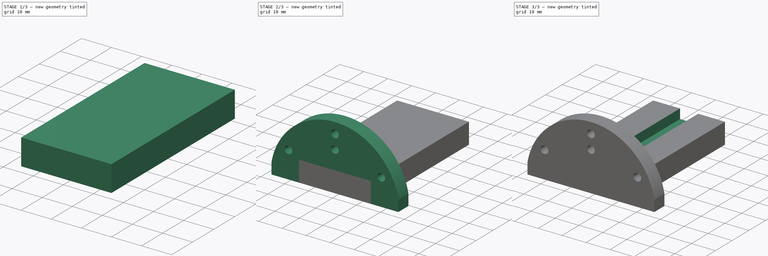
[diagram: build sequence overview — one tinted view per stage of 3, left to right]
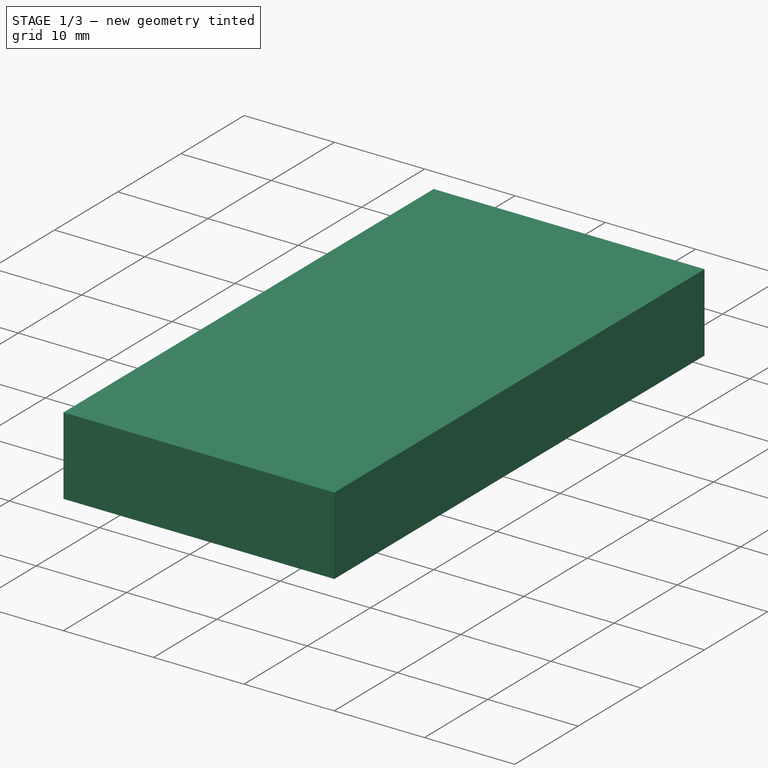
[diagram: stage 1 of 3 — iso view after this stage's code; geometry added in this stage tinted green]
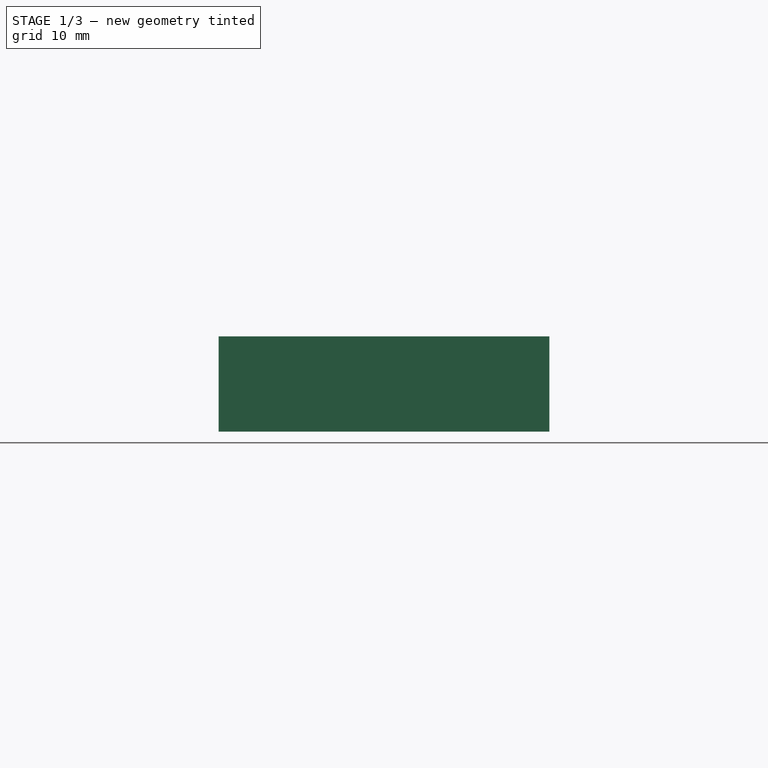
[diagram: stage 1 of 3 — front view after this stage's code; geometry added in this stage tinted green]
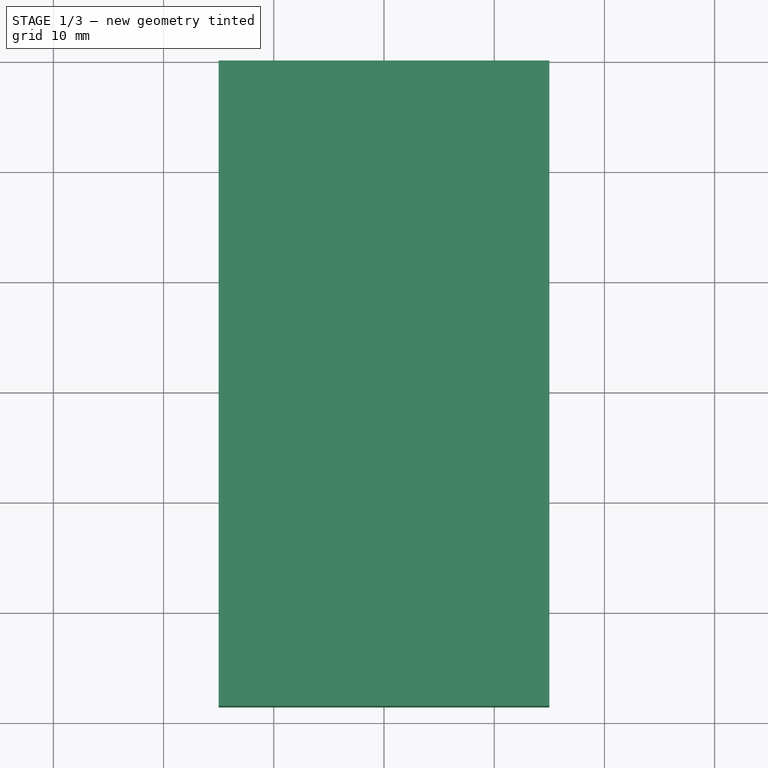
[diagram: stage 1 of 3 — top view after this stage's code; geometry added in this stage tinted green]
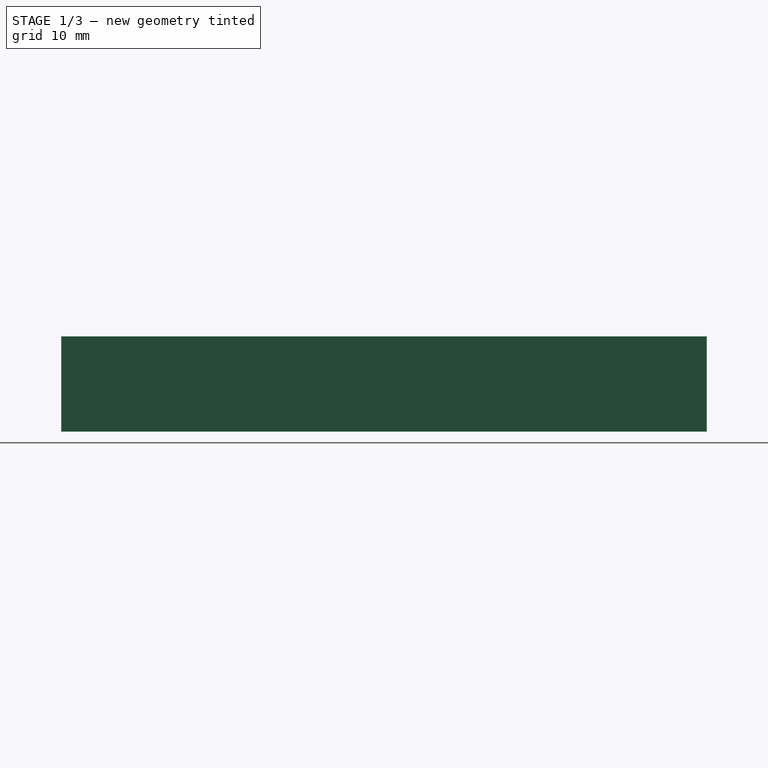
[diagram: stage 1 of 3 — right view after this stage's code; geometry added in this stage tinted green]
FCSTD DOCUMENT  (FreeCAD 0.20R29177 +426 (Git))
Label: l_stick_end
License: All rights reserved
LicenseURL: http://en.wikipedia.org/wiki/All_rights_reserved
objects: Sketcher::SketchObject×4, PartDesign::Pad×3, Spreadsheet::Sheet×2, PartDesign::Body×2, PartDesign::Mirrored×1, PartDesign::Pocket×1, Part::Cut×1
note: 16 computed .brp shape members not serialized (recipe doc carries the construction recipe); baked Part::Feature solids carry a one-line shape summary decoded from their .brp
EXTERNAL_REF file=l_long_stick.FCStd obj=Sketch004
EXTERNAL_REF file=l_long_stick.FCStd obj=Spreadsheet
EXTERNAL_REF file=l_long_stick.FCStd obj=Pad
EXTERNAL_REF file=l_long_stick.FCStd obj=Spreadsheet001
EXTERNAL_REF file=l_sg90_holder.FCStd obj=Spreadsheet
EXTERNAL_REF file=l_sg90_holder.FCStd obj=Spreadsheet001

FEATURE [Sketcher::SketchObject] Sketch
  FullyConstrained = true
  MapMode = 5
  Support = -> [XY_Plane]
  expr: Constraints[32] = <<l_long_stick>>#<<Sketch004>>.Constraints.stick_tall
  expr: Constraints[33] = <<l_long_stick>>#<<Sketch004>>.Constraints.stick_pad_xlen
  expr: Constraints[34] = <<l_long_stick>>#<<Sketch004>>.Constraints.stick_xlen_thick
  expr: Constraints[35] = <<l_long_stick>>#<<Sketch004>>.Constraints.base_ylen
  sketch-geometry (13):
    g0: LineSegment StartX=0 StartY=0 StartZ=0 EndX=-3.78 EndY=0 EndZ=0
    g1: LineSegment StartX=0 StartY=0 StartZ=0 EndX=3.78 EndY=0 EndZ=0
    g2: LineSegment StartX=-3.78 StartY=0 StartZ=0 EndX=-3.78 EndY=36 EndZ=0
    g3: LineSegment StartX=-3.78 StartY=36 StartZ=0 EndX=-4.11555 EndY=36 EndZ=0
    g4: LineSegment StartX=3.78 StartY=0 StartZ=0 EndX=3.78 EndY=36 EndZ=0
    g5: LineSegment StartX=3.78 StartY=36 StartZ=0 EndX=4.11555 EndY=36 EndZ=0
    g6: LineSegment StartX=-3.78 StartY=36 StartZ=0 EndX=3.78 EndY=36 EndZ=0
    g7: ArcOfCircle CenterX=-4.11555 CenterY=39.78 CenterZ=0 NormalX=0 NormalY=0 NormalZ=1 AngleXU=0 Radius=3.78 StartAngle=1.5708 EndAngle=4.71239
    g8: ArcOfCircle CenterX=4.11555 CenterY=39.78 CenterZ=0 NormalX=0 NormalY=0 NormalZ=1 AngleXU=0 Radius=3.78 StartAngle=4.71239 EndAngle=7.85398
    g9: LineSegment StartX=-4.11555 StartY=43.56 StartZ=0 EndX=4.11555 EndY=43.56 EndZ=0
    g10: LineSegment StartX=-4.11555 StartY=36 StartZ=0 EndX=-4.11555 EndY=43.56 EndZ=0
    g11: LineSegment StartX=4.11555 StartY=43.56 StartZ=0 EndX=4.11555 EndY=36 EndZ=0
    g12: LineSegment StartX=-3.78 StartY=0 StartZ=0 EndX=3.78 EndY=0 EndZ=0
  constraints (39):
    c: Coincident(g0,g-1)
    c: PointOnObject(g0,g-1)
    c: Coincident(g1,g0)
    c: PointOnObject(g1,g-1)
    c: Equal(g1,g0)
    c: Coincident(g0,g2)
    c: Vertical(g2)
    c: Coincident(g2,g3)
    c: Horizontal(g3)
    c: Coincident(g1,g4)
    c: Vertical(g4)
    c: Coincident(g4,g5)
    c: Horizontal(g5)
    c: Coincident(g6,g2)
    c: Coincident(g6,g4)
    c: Horizontal(g6)
    c: Equal(g5,g3)
    c: Coincident(g7,g3)
    c: Coincident(g8,g5)
    c: Coincident(g9,g7)
    c: Coincident(g9,g8)
    c: Horizontal(g9)
    c: Coincident(g10,g3)
    c: Coincident(g10,g7)
    c: Coincident(g11,g8)
    c: Coincident(g11,g5)
    c: Vertical(g11)
    c: PointOnObject(g8,g11)
    c: PointOnObject(g7,g10)
    c: Vertical(g10)
    c: Coincident(g12,g2)
    c: Coincident(g12,g4)
    c: DistanceY(g2,g2) = 36
    c: DistanceX(g3,g3) = 0.33555
    c: DistanceX(g12,g12) = 7.56
    c: DistanceY(g11,g11) = 7.56
    c: DistanceY(g4,g8) = 43.56  'ylen'
    c: DistanceY(g2,g7) = 39.78  'cir_ylen'
    c: DistanceX(g7,g0) = 4.11555  'cir_xlen'
FEATURE [Spreadsheet::Sheet] Spreadsheet  label="key_data"
  cells = A1=Name; B1=Value; A2=key_space; B2(key_space)==0.6mm
FEATURE [PartDesign::Pad] Pad
  Direction = (0,0,1)
  Length = 4
  Length2 = 10
  Profile = -> Sketch
  ReferenceAxis = -> Sketch [N_Axis]
  Type = 0
  expr: Length = <<l_long_stick>>#<<stick_data>>.stick_tie_thick
FEATURE [PartDesign::Body] Body  label="key"
  Group = -> [Sketch,Pad,Mirrored]
  Origin = -> Origin
  Tip = -> Mirrored
FEATURE [Spreadsheet::Sheet] Spreadsheet001  label="stick_end_data"
  cells = A1=Name; B1=Value; A2=stick_end_full_ylen_min; B2(stick_end_full_ylen_min)==<<l_long_stick>>#<<pgb_data>>.pbg_len - <<l_sg90_holder>>#<<servo_data>>.sg90_hold_gear2box_end - <<l_long_stick>>#<<stick_data>>.stick_full_ylen; A3=stick_end_full_ylen; B3(stick_end_full_ylen)==Sketch.Constraints.ylen + 15mm; A4=stick_end_thick; B4(stick_end_thick)==<<l_sg90_holder>>#<<servo_data>>.sg90_base_zlen / 2 + <<l_sg90_holder>>#<<servo_data>>.sg90_hold_base_wall_thick - <<l_long_stick>>#<<Pad>>.Length + <<Pad>>.Length; A5=stick_end_offset; B5(stick_end_offset)==<<l_sg90_holder>>#<<servo_data>>.sg90_base_zlen / 2 + <<l_sg90_holder>>#<<servo_data>>.sg90_hold_base_wall_thick - <<l_long_stick>>#<<Pad>>.Length; A6=stick_end_xlen; B6(stick_end_xlen)==30mm; A7=stick_end_wall_pad; B7(stick_end_wall_pad)==6mm; A8=stick_end_dig_pad; B8(stick_end_dig_pad)==5mm
FEATURE [Sketcher::SketchObject] Sketch001
  AttachmentOffset = pos=(0,0,-4.65) rot=(0,0,1;0rad)
  FullyConstrained = true
  MapMode = 5
  Placement = pos=(0,0,-4.65) rot=(0,0,1;0rad)
  Support = -> [XY_Plane001]
  expr: .AttachmentOffset.Base.z = -<<stick_end_data>>.stick_end_offset
  expr: .Constraints.xlen = <<stick_end_data>>.stick_end_xlen
  expr: .Constraints.ylen = <<stick_end_data>>.stick_end_full_ylen
  sketch-geometry (5):
    g0: LineSegment StartX=-15 StartY=-58.56 StartZ=0 EndX=-15 EndY=0 EndZ=0
    g1: LineSegment StartX=-15 StartY=0 StartZ=0 EndX=15 EndY=0 EndZ=0
    g2: LineSegment StartX=15 StartY=0 StartZ=0 EndX=15 EndY=-58.56 EndZ=0
    g3: LineSegment StartX=15 StartY=-58.56 StartZ=0 EndX=-15 EndY=-58.56 EndZ=0
    g4: GeomPoint X=0 Y=-29.28 Z=0
  constraints (13):
    c: Coincident(g0,g1)
    c: Coincident(g1,g2)
    c: Coincident(g2,g3)
    c: Coincident(g3,g0)
    c: Horizontal(g1)
    c: Horizontal(g3)
    c: Vertical(g0)
    c: Vertical(g2)
    c: Symmetric(g1,g0,g4)
    c: PointOnObject(g4,g-2)
    c: PointOnObject(g1,g-1)
    c: DistanceX(g1,g1) = 30  'xlen'
    c: DistanceY(g0,g0) = 58.56  'ylen'
FEATURE [PartDesign::Pad] Pad001
  Direction = (0,0,1)
  Length = 8.65
  Length2 = 10
  Profile = -> Sketch001
  ReferenceAxis = -> Sketch001 [N_Axis]
  Type = 0
  expr: Length = <<stick_end_data>>.stick_end_thick
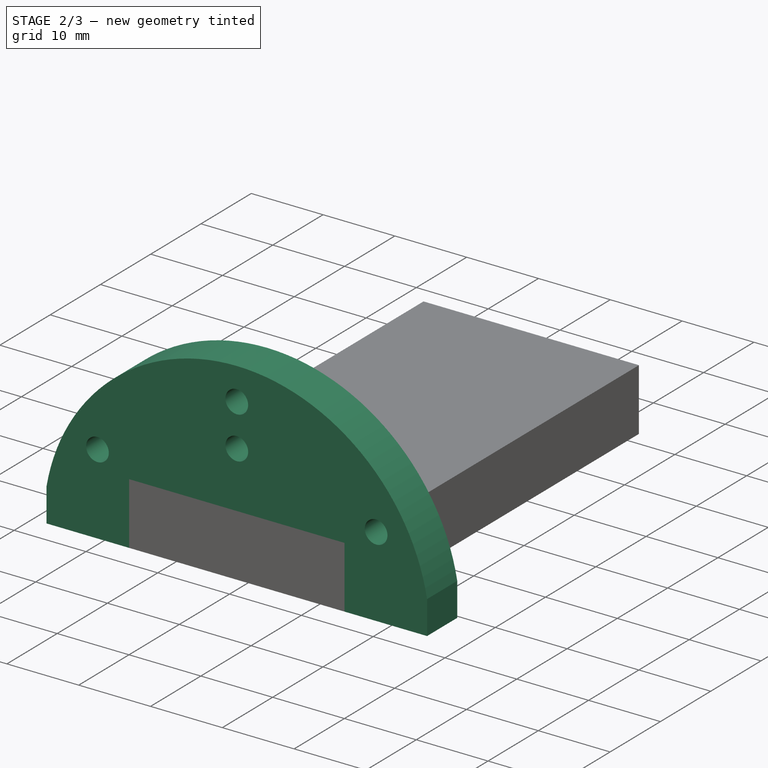
[diagram: stage 2 of 3 — iso view after this stage's code; geometry added in this stage tinted green]
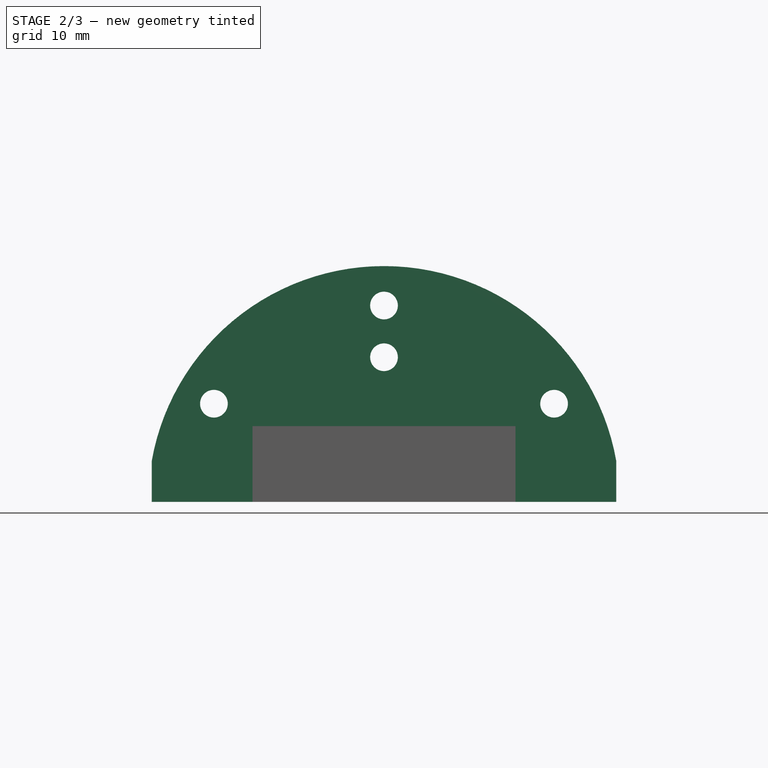
[diagram: stage 2 of 3 — front view after this stage's code; geometry added in this stage tinted green]
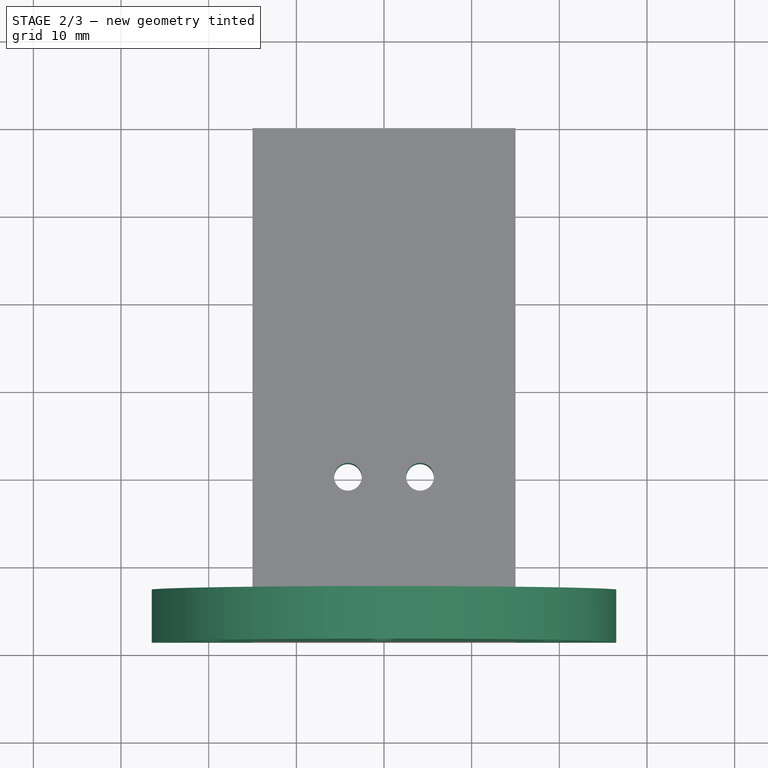
[diagram: stage 2 of 3 — top view after this stage's code; geometry added in this stage tinted green]
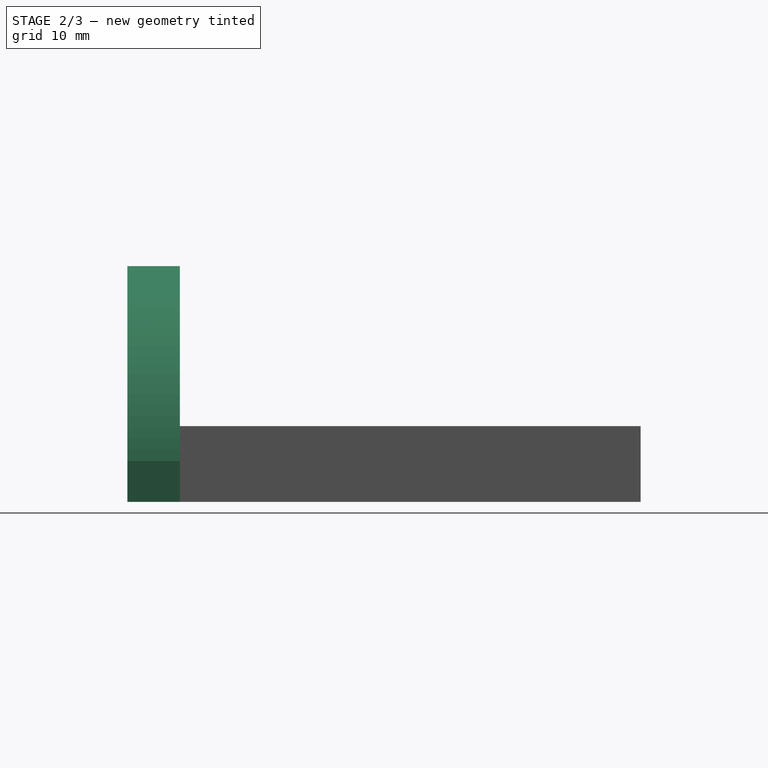
[diagram: stage 2 of 3 — right view after this stage's code; geometry added in this stage tinted green]
FEATURE [Sketcher::SketchObject] Sketch002
  AttachmentOffset = pos=(0,0,58.56) rot=(0,0,1;0rad)
  FullyConstrained = true
  MapMode = 5
  Placement = pos=(0,-58.56,-1.3e-14) rot=(1,0,0;1.5708rad)
  Support = -> [XZ_Plane001]
  expr: .AttachmentOffset.Base.x = 0
  expr: .AttachmentOffset.Base.y = 0
  expr: .AttachmentOffset.Base.z = <<Sketch001>>.Constraints.ylen
  expr: .Constraints.dist_down = <<stick_end_data>>.stick_end_wall_pad * 0.75
  expr: .Constraints.dist_holes_ylen = <<l_sg90_holder>>#<<screw_data>>.m3_head_dia + <<l_sg90_holder>>#<<screw_data>>.m3_space * 2
  expr: .Constraints.hole_dia = <<l_sg90_holder>>#<<screw_data>>.m3_screw_dia + <<l_sg90_holder>>#<<screw_data>>.m3_space
  expr: .Constraints.r_angle = 180 - 30
  expr: .Constraints.thick_ylen = <<stick_end_data>>.stick_end_offset
  expr: Constraints[50] = <<Sketch001>>.Constraints.xlen + <<l_sg90_holder>>#<<screw_data>>.m3_head_dia * 2 + <<stick_end_data>>.stick_end_wall_pad * 2
  sketch-geometry (18):
    g0: ArcOfCircle CenterX=0 CenterY=-4.65 CenterZ=0 NormalX=0 NormalY=0 NormalZ=1 AngleXU=0 Radius=26.9049 StartAngle=0.173703 EndAngle=2.96789
    g1: LineSegment StartX=26.5 StartY=1.8e-15 StartZ=0 EndX=26.5 EndY=-4.65 EndZ=0
    g2: LineSegment StartX=-26.5 StartY=-4.65 StartZ=0 EndX=26.5 EndY=-4.65 EndZ=0
    g3: LineSegment StartX=-26.5 StartY=-4.65 StartZ=0 EndX=-26.5 EndY=-2.325 EndZ=0
    g4: LineSegment StartX=-26.5 StartY=-2.325 StartZ=0 EndX=-26.5 EndY=4.4e-15 EndZ=0
    g5: LineSegment StartX=-26.5 StartY=-2.325 StartZ=0 EndX=26.5 EndY=-2.325 EndZ=0
    g6: Circle CenterX=-19.4032 CenterY=6.55244 CenterZ=0 NormalX=0 NormalY=0 NormalZ=1 AngleXU=0 Radius=1.58
    g7: Circle CenterX=19.4032 CenterY=6.55244 CenterZ=0 NormalX=0 NormalY=0 NormalZ=1 AngleXU=0 Radius=1.58
    g8: Circle CenterX=0 CenterY=17.7549 CenterZ=0 NormalX=0 NormalY=0 NormalZ=1 AngleXU=0 Radius=1.58
    g9: Circle CenterX=0 CenterY=11.8549 CenterZ=0 NormalX=0 NormalY=0 NormalZ=1 AngleXU=0 Radius=1.58
    g10: LineSegment StartX=0 StartY=-4.65 StartZ=0 EndX=-19.4032 EndY=6.55244 EndZ=0
    g11: LineSegment StartX=-19.4032 StartY=6.55244 StartZ=0 EndX=-23.3003 EndY=8.80244 EndZ=0
    g12: LineSegment StartX=0 StartY=-4.65 StartZ=0 EndX=19.4032 EndY=6.55244 EndZ=0
    g13: LineSegment StartX=19.4032 StartY=6.55244 StartZ=0 EndX=23.3003 EndY=8.80244 EndZ=0
    g14: LineSegment StartX=-23.3003 StartY=8.80244 StartZ=0 EndX=-23.3003 EndY=-4.65 EndZ=0
    g15: LineSegment StartX=0 StartY=17.7549 StartZ=0 EndX=0 EndY=22.2549 EndZ=0
    g16: LineSegment StartX=0 StartY=17.7549 StartZ=0 EndX=0 EndY=11.8549 EndZ=0
    g17: LineSegment StartX=0 StartY=11.8549 StartZ=0 EndX=0 EndY=-4.65 EndZ=0
  constraints (51):
    c: PointOnObject(g0,g-1)
    c: PointOnObject(g0,g-1)
    c: PointOnObject(g0,g-2)
    c: Coincident(g1,g0)
    c: Vertical(g1)
    c: Coincident(g2,g1)
    c: Horizontal(g2)
    c: DistanceY(g2,g0) = 4.65  'thick_ylen'
    c: Coincident(g2,g3)
    c: Vertical(g3)
    c: Coincident(g3,g4)
    c: Coincident(g4,g0)
    c: Vertical(g4)
    c: Equal(g4,g3)
    c: Coincident(g5,g3)
    c: PointOnObject(g5,g1)
    c: Horizontal(g5)
    c: PointOnObject(g8,g-2)
    c: PointOnObject(g9,g-2)
    c: Equal(g6,g7)
    c: Equal(g7,g9)
    c: Equal(g9,g8)
    c: Diameter(g6) = 3.16  'hole_dia'
    c: Coincident(g10,g0)
    c: Coincident(g10,g6)
    c: Coincident(g11,g6)
    c: PointOnObject(g11,g0)
    c: Coincident(g12,g0)
    c: Coincident(g12,g7)
    c: Coincident(g13,g7)
    c: PointOnObject(g13,g0)
    c: Parallel(g13,g12)
    c: Parallel(g10,g11)
    c: Equal(g11,g13)
    c: Coincident(g14,g11)
    c: PointOnObject(g14,g2)
    c: Vertical(g14)
    c: Coincident(g15,g8)
    c: PointOnObject(g15,g0)
    c: Vertical(g15)
    c: Coincident(g16,g8)
    c: Coincident(g16,g9)
    c: Coincident(g17,g9)
    c: Coincident(g17,g0)
    c: Distance(g11) = 4.5  'dist_down'
    c: PointOnObject(g0,g2)
    c: Equal(g11,g15)
    c: DistanceY(g9,g8) = 5.9  'dist_holes_ylen'
    c: Angle(g10,g2) = 0.523599  'l_angle'
    c: Angle(g12,g2) = 2.61799  'r_angle'
    c: DistanceX(g2,g1) = 53
FEATURE [PartDesign::Pad] Pad002
  BaseFeature = -> Pad001
  Direction = (0,-1,2e-16)
  Length = 6
  Length2 = 10
  Profile = -> Sketch002
  ReferenceAxis = -> Sketch002 [N_Axis]
  Reversed = true
  Type = 0
  expr: Length = <<stick_end_data>>.stick_end_wall_pad
FEATURE [Sketcher::SketchObject] Sketch003
  FullyConstrained = true
  MapMode = 5
  Support = -> [XY_Plane001]
  expr: Constraints[10] = <<l_sg90_holder>>#<<screw_data>>.m3_screw_dia + <<l_sg90_holder>>#<<screw_data>>.m3_space
  expr: Constraints[11] = <<Sketch>>.Constraints.cir_ylen
  expr: Constraints[12] = <<Sketch>>.Constraints.cir_xlen
  sketch-geometry (5):
    g0: LineSegment StartX=0 StartY=0 StartZ=0 EndX=0 EndY=-39.78 EndZ=0
    g1: LineSegment StartX=0 StartY=-39.78 StartZ=0 EndX=-4.11555 EndY=-39.78 EndZ=0
    g2: LineSegment StartX=0 StartY=-39.78 StartZ=0 EndX=4.11555 EndY=-39.78 EndZ=0
    g3: Circle CenterX=-4.11555 CenterY=-39.78 CenterZ=0 NormalX=0 NormalY=0 NormalZ=1 AngleXU=0 Radius=1.58
    g4: Circle CenterX=4.11555 CenterY=-39.78 CenterZ=0 NormalX=0 NormalY=0 NormalZ=1 AngleXU=0 Radius=1.58
  constraints (13):
    c: Coincident(g0,g-1)
    c: PointOnObject(g0,g-2)
    c: Coincident(g1,g0)
    c: Horizontal(g1)
    c: Coincident(g2,g0)
    c: Horizontal(g2)
    c: Equal(g2,g1)
    c: Coincident(g3,g1)
    c: Coincident(g4,g2)
    c: Equal(g4,g3)
    c: Diameter(g4) = 3.16
    c: DistanceY(g0,g0) = 39.78
    c: DistanceX(g1,g1) = 4.11555
FEATURE [PartDesign::Pocket] Pocket
  BaseFeature = -> Pad002
  Direction = (0,0,-1)
  Length = 5
  Length2 = 5
  Midplane = true
  Profile = -> Sketch003
  ReferenceAxis = -> Sketch003 [N_Axis]
  Type = 1
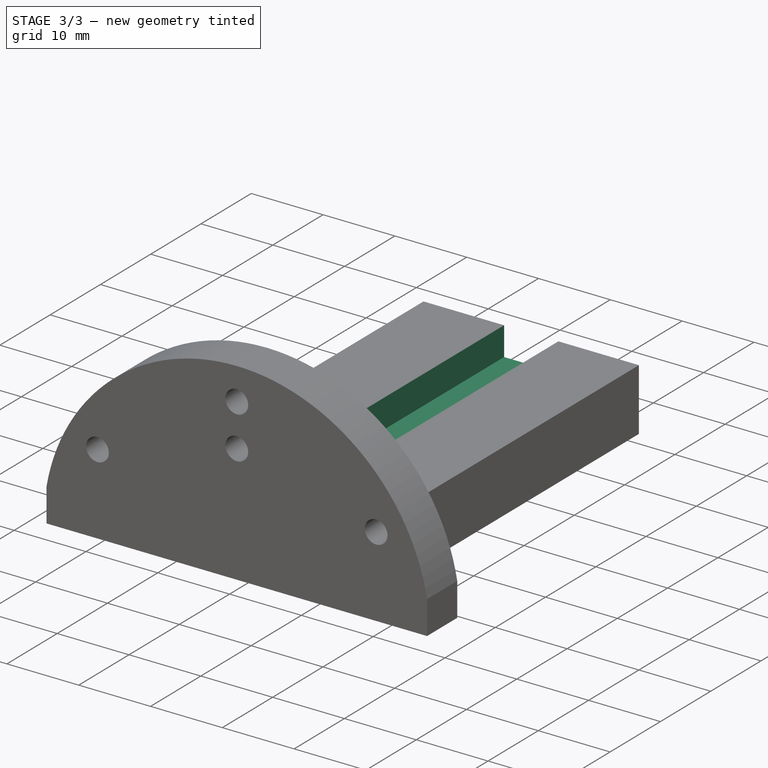
[diagram: stage 3 of 3 — iso view after this stage's code; geometry added in this stage tinted green]
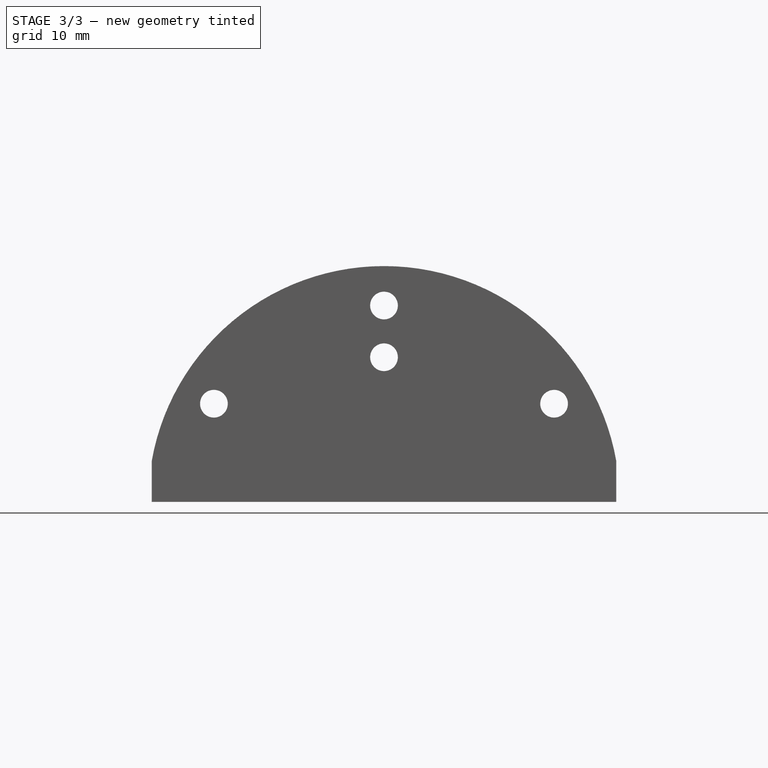
[diagram: stage 3 of 3 — front view after this stage's code; geometry added in this stage tinted green]
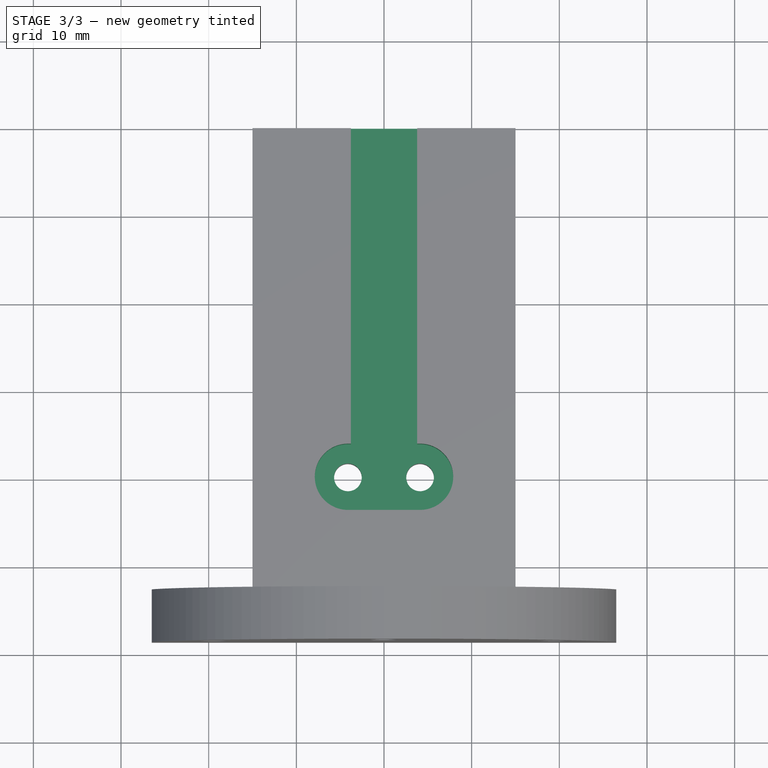
[diagram: stage 3 of 3 — top view after this stage's code; geometry added in this stage tinted green]
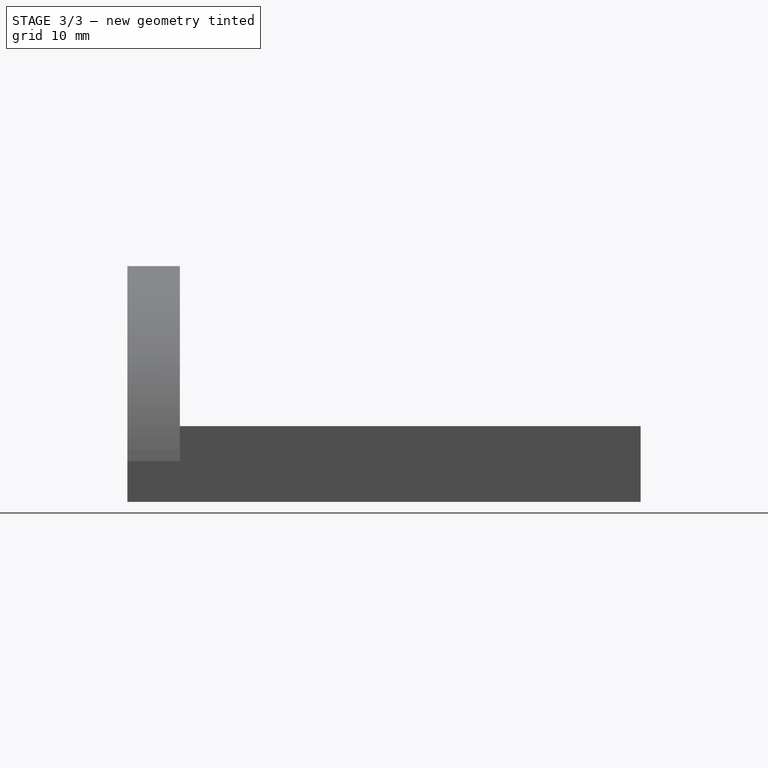
[diagram: stage 3 of 3 — right view after this stage's code; geometry added in this stage tinted green]
FEATURE [PartDesign::Mirrored] Mirrored
  BaseFeature = -> Pad
  MirrorPlane = -> Sketch [H_Axis]
  Originals = -> [Pad]
FEATURE [PartDesign::Body] Body001  label="base"
  Group = -> [Sketch001,Pad001,Sketch002,Pad002,Sketch003,Pocket]
  Origin = -> Origin001
  Tip = -> Pocket
FEATURE [Part::Cut] Cut
  Base = -> Body001
  Tool = -> Body
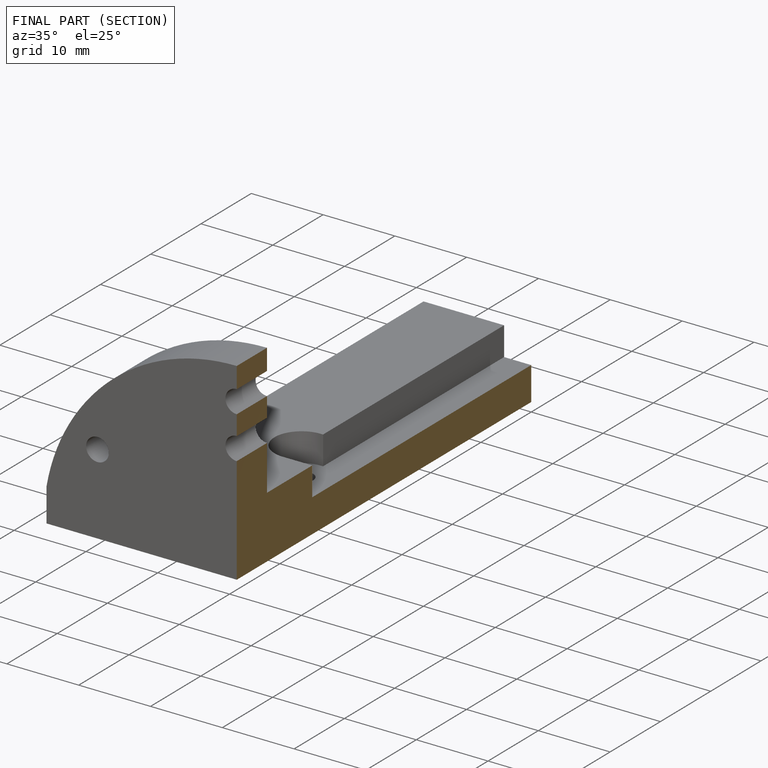
[diagram: finished part — half-section view (interior)]
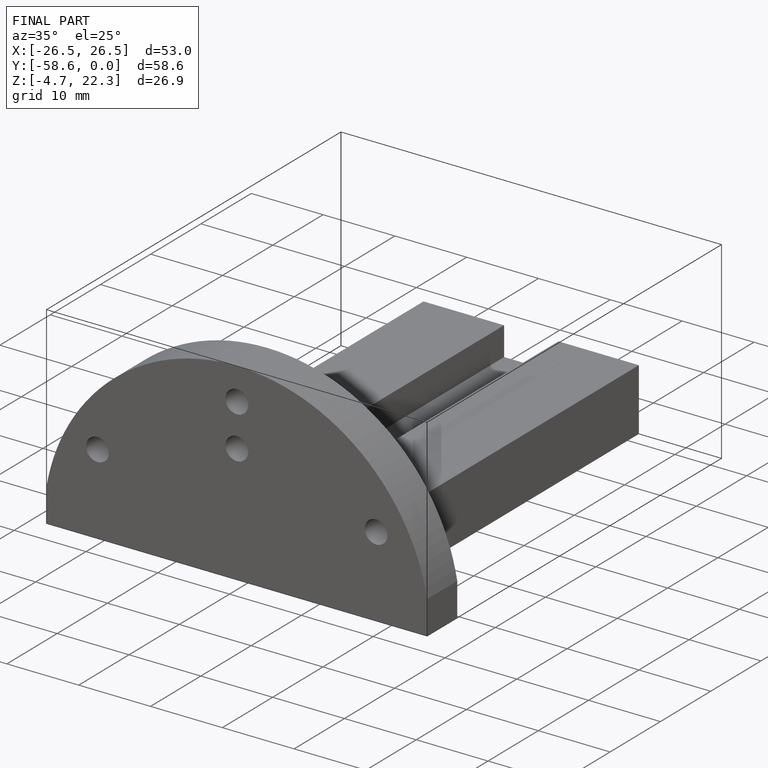
[diagram: finished part — iso view with bounding-box wireframe]
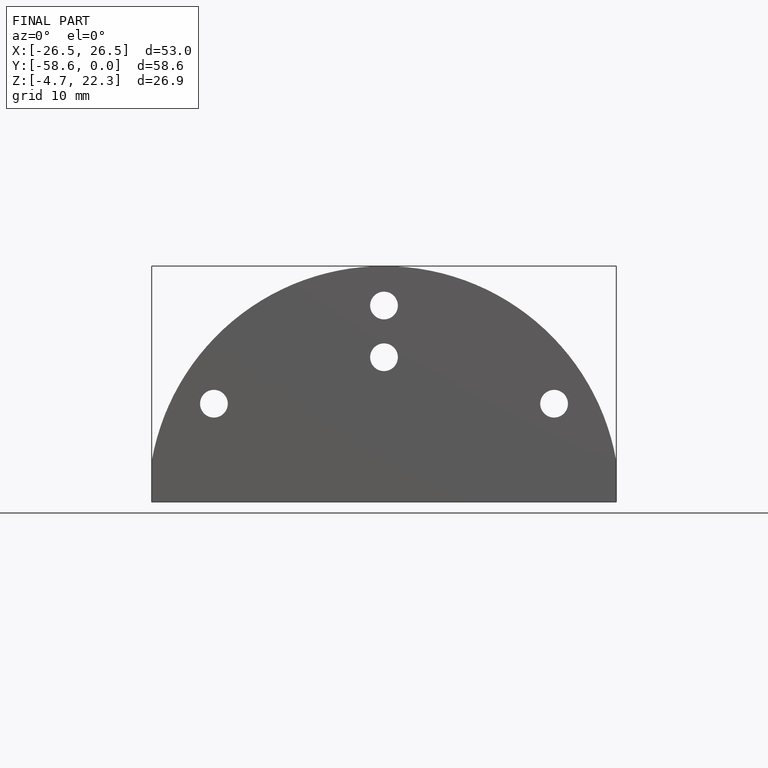
[diagram: finished part — front view with bounding-box wireframe]
